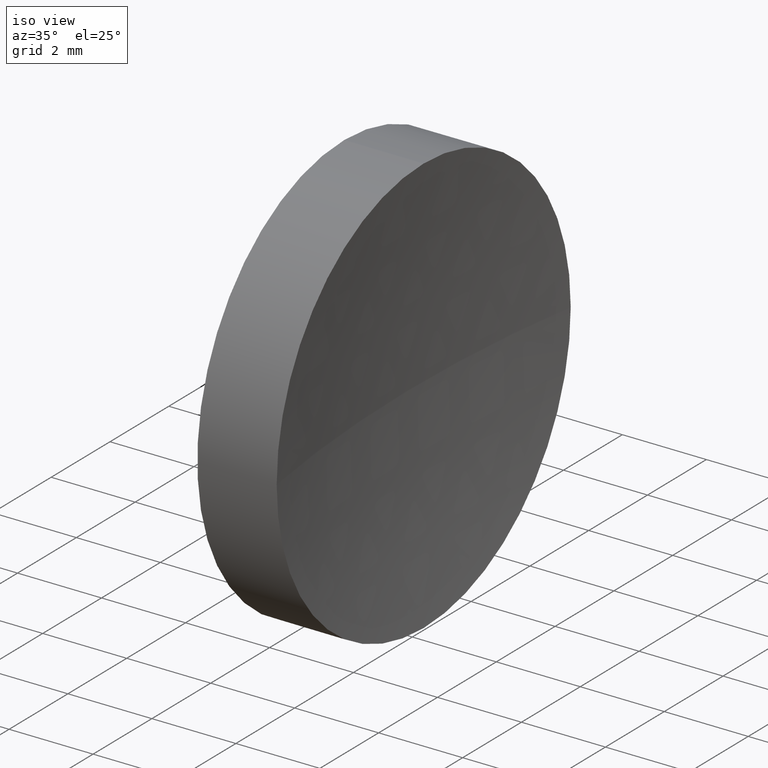
[diagram: clean part render]
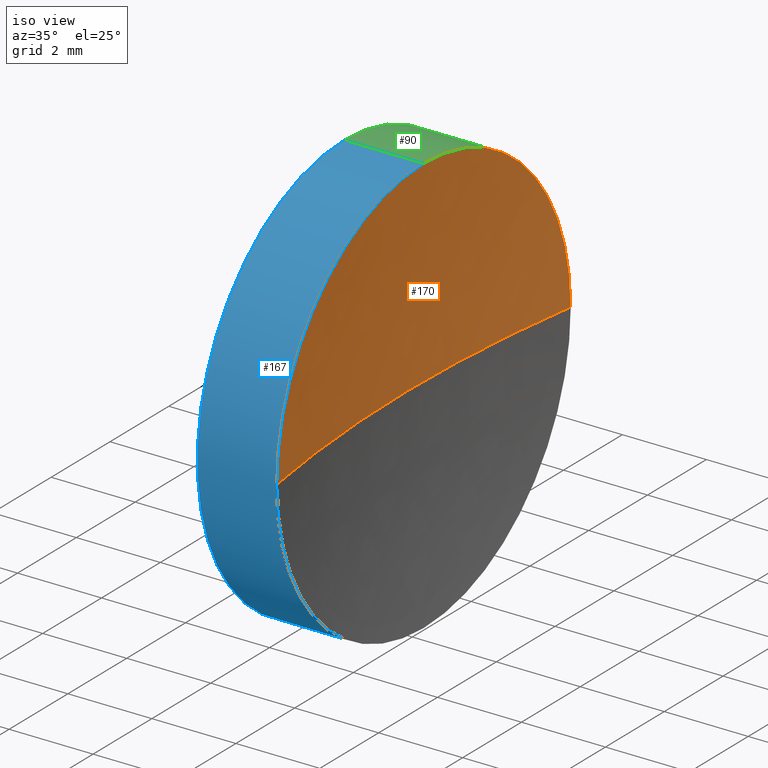
[diagram: same view with three faces highlighted in distinct colors, each labeled with its STEP entity id]
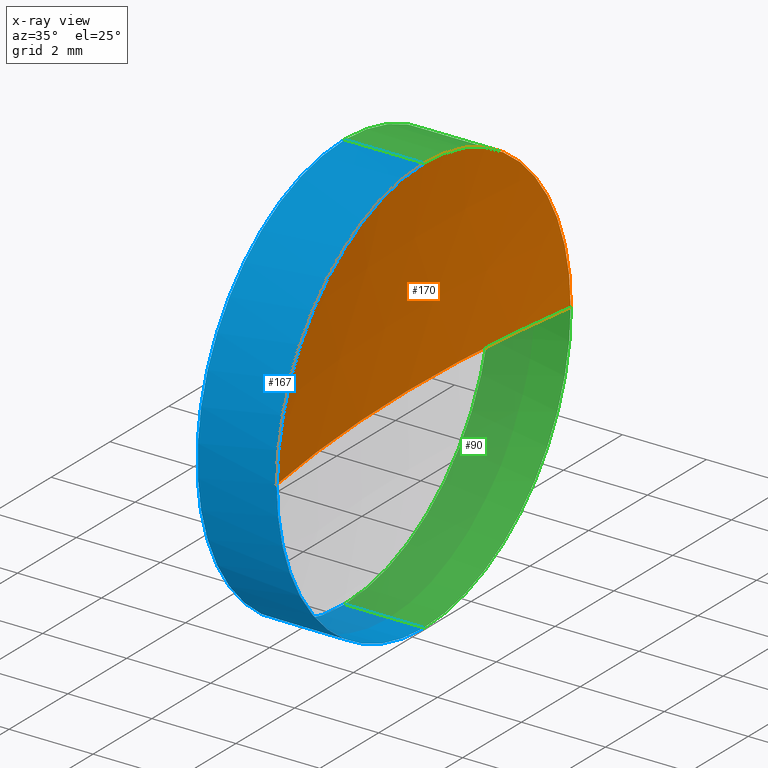
[diagram: x-ray of the same camera — body ghosted, the three highlighted faces saturated]
A machine part, iso view with three faces highlighted in distinct colors.
The next image is the same camera in x-ray (body ghosted, the three faces saturated) — at least one of them is partly hidden behind the body in this view.
Their STEP definitions:

[orange] entity #170 — the highlighted spherical surface has radius 32.2463 mm.
#1 = ORIENTED_EDGE ( 'NONE', *, *, #173, .T. ) ;
#3 = DIRECTION ( 'NONE',  ( 0.0000000000000000000, 0.0000000000000000000, 1.000000000000000000 ) ) ;
#8 = VERTEX_POINT ( 'NONE', #16 ) ;
#12 = FACE_OUTER_BOUND ( 'NONE', #31, .T. ) ;
#14 = DIRECTION ( 'NONE',  ( -1.000000000000000000, -0.0000000000000000000, -0.0000000000000000000 ) ) ;
#16 = CARTESIAN_POINT ( 'NONE',  ( 45.81958546217385500, 26.08904114919495500, 0.0000000000000000000 ) ) ;
#21 = DIRECTION ( 'NONE',  ( 0.0000000000000000000, -1.000000000000000000, 0.0000000000000000000 ) ) ;
#24 = AXIS2_PLACEMENT_3D ( 'NONE', #65, #137, #46 ) ;
#26 = AXIS2_PLACEMENT_3D ( 'NONE', #79, #3, #21 ) ;
#27 = CARTESIAN_POINT ( 'NONE',  ( 46.20958549791029700, 26.08904114919495900, 0.0000000000000000000 ) ) ;
#31 = EDGE_LOOP ( 'NONE', ( #149, #166, #178, #1 ) ) ;
#34 = CARTESIAN_POINT ( 'NONE',  ( 46.20958549791029700, 31.08904114919497300, 6.123233995736783000E-016 ) ) ;
#41 = AXIS2_PLACEMENT_3D ( 'NONE', #27, #14, #130 ) ;
#46 = DIRECTION ( 'NONE',  ( 0.0000000000000000000, -1.000000000000000000, -1.224646799147353200E-016 ) ) ;
#52 = EDGE_CURVE ( 'NONE', #112, #183, #181, .T. ) ;
#55 = EDGE_CURVE ( 'NONE', #183, #71, #60, .T. ) ;
#56 = DIRECTION ( 'NONE',  ( -1.000000000000000000, -0.0000000000000000000, -0.0000000000000000000 ) ) ;
#60 = CIRCLE ( 'NONE', #70, 5.000000000000000900 ) ;
#65 = CARTESIAN_POINT ( 'NONE',  ( 78.06586459440524100, 26.08904114919495900, 0.0000000000000000000 ) ) ;
#70 = AXIS2_PLACEMENT_3D ( 'NONE', #143, #56, #113 ) ;
#71 = VERTEX_POINT ( 'NONE', #34 ) ;
#74 = CIRCLE ( 'NONE', #24, 32.24627913223138600 ) ;
#79 = CARTESIAN_POINT ( 'NONE',  ( 78.06586459440524100, 26.08904114919495900, 0.0000000000000000000 ) ) ;
#80 = CARTESIAN_POINT ( 'NONE',  ( 78.06586459440524100, 26.08904114919495900, 0.0000000000000000000 ) ) ;
#85 = SPHERICAL_SURFACE ( 'NONE', #26, 32.24627913223138600 ) ;
#102 = AXIS2_PLACEMENT_3D ( 'NONE', #80, #176, #105 ) ;
#103 = EDGE_CURVE ( 'NONE', #71, #8, #74, .T. ) ;
#105 = DIRECTION ( 'NONE',  ( -1.000000000000000000, 0.0000000000000000000, 0.0000000000000000000 ) ) ;
#110 = CIRCLE ( 'NONE', #102, 32.24627913223138600 ) ;
#112 = VERTEX_POINT ( 'NONE', #162 ) ;
#113 = DIRECTION ( 'NONE',  ( 0.0000000000000000000, 0.0000000000000000000, 1.000000000000000000 ) ) ;
#130 = DIRECTION ( 'NONE',  ( 0.0000000000000000000, 0.0000000000000000000, 1.000000000000000000 ) ) ;
#137 = DIRECTION ( 'NONE',  ( 0.0000000000000000000, -1.224646799147353200E-016, 1.000000000000000000 ) ) ;
#143 = CARTESIAN_POINT ( 'NONE',  ( 46.20958549791029700, 26.08904114919495900, 0.0000000000000000000 ) ) ;
#149 = ORIENTED_EDGE ( 'NONE', *, *, #103, .F. ) ;
#160 = CARTESIAN_POINT ( 'NONE',  ( 46.20958549791029700, 26.08904114919495900, 5.000000000000000900 ) ) ;
#162 = CARTESIAN_POINT ( 'NONE',  ( 46.20958549791029700, 21.08904114919494400, 0.0000000000000000000 ) ) ;
#166 = ORIENTED_EDGE ( 'NONE', *, *, #55, .F. ) ;
#170 = ADVANCED_FACE ( 'NONE', ( #12 ), #85, .F. ) ;
#173 = EDGE_CURVE ( 'NONE', #112, #8, #110, .T. ) ;
#176 = DIRECTION ( 'NONE',  ( 0.0000000000000000000, 0.0000000000000000000, -1.000000000000000000 ) ) ;
#178 = ORIENTED_EDGE ( 'NONE', *, *, #52, .F. ) ;
#181 = CIRCLE ( 'NONE', #41, 5.000000000000000900 ) ;
#183 = VERTEX_POINT ( 'NONE', #160 ) ;

[blue] entity #167 — the highlighted cylindrical surface (partial cylindrical patch) has radius 5 mm, axis along (-1, -0, -0).
#4 = DIRECTION ( 'NONE',  ( 0.0000000000000000000, 0.0000000000000000000, 1.000000000000000000 ) ) ;
#14 = DIRECTION ( 'NONE',  ( -1.000000000000000000, -0.0000000000000000000, -0.0000000000000000000 ) ) ;
#15 = EDGE_CURVE ( 'NONE', #29, #121, #186, .T. ) ;
#20 = DIRECTION ( 'NONE',  ( -1.000000000000000000, -0.0000000000000000000, -0.0000000000000000000 ) ) ;
#22 = CARTESIAN_POINT ( 'NONE',  ( 42.44986111413682300, 26.08904114919495900, 0.0000000000000000000 ) ) ;
#27 = CARTESIAN_POINT ( 'NONE',  ( 46.20958549791029700, 26.08904114919495900, 0.0000000000000000000 ) ) ;
#28 = CARTESIAN_POINT ( 'NONE',  ( 42.44986111413682300, 26.08904114919495900, -5.000000000000000900 ) ) ;
#29 = VERTEX_POINT ( 'NONE', #131 ) ;
#32 = AXIS2_PLACEMENT_3D ( 'NONE', #124, #38, #92 ) ;
#33 = ORIENTED_EDGE ( 'NONE', *, *, #15, .F. ) ;
#37 = EDGE_LOOP ( 'NONE', ( #33, #164, #156, #66, #134 ) ) ;
#38 = DIRECTION ( 'NONE',  ( -1.000000000000000000, -0.0000000000000000000, -0.0000000000000000000 ) ) ;
#41 = AXIS2_PLACEMENT_3D ( 'NONE', #27, #14, #130 ) ;
#47 = EDGE_CURVE ( 'NONE', #183, #59, #99, .T. ) ;
#50 = VECTOR ( 'NONE', #185, 1000.000000000000000 ) ;
#51 = CARTESIAN_POINT ( 'NONE',  ( 44.31958549791029600, 26.08904114919495900, -5.000000000000000900 ) ) ;
#52 = EDGE_CURVE ( 'NONE', #112, #183, #181, .T. ) ;
#54 = CARTESIAN_POINT ( 'NONE',  ( 42.44986111413682300, 26.08904114919495900, 5.000000000000000900 ) ) ;
#57 = EDGE_CURVE ( 'NONE', #29, #112, #68, .T. ) ;
#59 = VERTEX_POINT ( 'NONE', #150 ) ;
#66 = ORIENTED_EDGE ( 'NONE', *, *, #47, .T. ) ;
#68 = CIRCLE ( 'NONE', #136, 5.000000000000000900 ) ;
#69 = AXIS2_PLACEMENT_3D ( 'NONE', #22, #20, #104 ) ;
#75 = FACE_OUTER_BOUND ( 'NONE', #37, .T. ) ;
#81 = DIRECTION ( 'NONE',  ( -1.000000000000000000, -0.0000000000000000000, -0.0000000000000000000 ) ) ;
#92 = DIRECTION ( 'NONE',  ( 0.0000000000000000000, 0.0000000000000000000, 1.000000000000000000 ) ) ;
#99 = LINE ( 'NONE', #54, #155 ) ;
#104 = DIRECTION ( 'NONE',  ( 0.0000000000000000000, 0.0000000000000000000, 1.000000000000000000 ) ) ;
#106 = CARTESIAN_POINT ( 'NONE',  ( 46.20958549791029700, 26.08904114919495900, 0.0000000000000000000 ) ) ;
#112 = VERTEX_POINT ( 'NONE', #162 ) ;
#117 = EDGE_CURVE ( 'NONE', #121, #59, #132, .T. ) ;
#118 = CYLINDRICAL_SURFACE ( 'NONE', #69, 5.000000000000000900 ) ;
#121 = VERTEX_POINT ( 'NONE', #51 ) ;
#124 = CARTESIAN_POINT ( 'NONE',  ( 44.31958549791029600, 26.08904114919495900, 0.0000000000000000000 ) ) ;
#129 = DIRECTION ( 'NONE',  ( -1.000000000000000000, -0.0000000000000000000, -0.0000000000000000000 ) ) ;
#130 = DIRECTION ( 'NONE',  ( 0.0000000000000000000, 0.0000000000000000000, 1.000000000000000000 ) ) ;
#131 = CARTESIAN_POINT ( 'NONE',  ( 46.20958549791029700, 26.08904114919495900, -5.000000000000000900 ) ) ;
#132 = CIRCLE ( 'NONE', #32, 5.000000000000000900 ) ;
#134 = ORIENTED_EDGE ( 'NONE', *, *, #117, .F. ) ;
#136 = AXIS2_PLACEMENT_3D ( 'NONE', #106, #81, #4 ) ;
#150 = CARTESIAN_POINT ( 'NONE',  ( 44.31958549791029600, 26.08904114919495900, 5.000000000000000900 ) ) ;
#155 = VECTOR ( 'NONE', #129, 1000.000000000000000 ) ;
#156 = ORIENTED_EDGE ( 'NONE', *, *, #52, .T. ) ;
#160 = CARTESIAN_POINT ( 'NONE',  ( 46.20958549791029700, 26.08904114919495900, 5.000000000000000900 ) ) ;
#162 = CARTESIAN_POINT ( 'NONE',  ( 46.20958549791029700, 21.08904114919494400, 0.0000000000000000000 ) ) ;
#164 = ORIENTED_EDGE ( 'NONE', *, *, #57, .T. ) ;
#167 = ADVANCED_FACE ( 'NONE', ( #75 ), #118, .T. ) ;
#181 = CIRCLE ( 'NONE', #41, 5.000000000000000900 ) ;
#183 = VERTEX_POINT ( 'NONE', #160 ) ;
#185 = DIRECTION ( 'NONE',  ( -1.000000000000000000, -0.0000000000000000000, -0.0000000000000000000 ) ) ;
#186 = LINE ( 'NONE', #28, #50 ) ;

[green] entity #90 — the highlighted cylindrical surface (partial cylindrical patch) has radius 5 mm, axis along (-1, -0, -0).
#9 = ORIENTED_EDGE ( 'NONE', *, *, #55, .T. ) ;
#15 = EDGE_CURVE ( 'NONE', #29, #121, #186, .T. ) ;
#18 = FACE_OUTER_BOUND ( 'NONE', #77, .T. ) ;
#28 = CARTESIAN_POINT ( 'NONE',  ( 42.44986111413682300, 26.08904114919495900, -5.000000000000000900 ) ) ;
#29 = VERTEX_POINT ( 'NONE', #131 ) ;
#34 = CARTESIAN_POINT ( 'NONE',  ( 46.20958549791029700, 31.08904114919497300, 6.123233995736783000E-016 ) ) ;
#40 = DIRECTION ( 'NONE',  ( -1.000000000000000000, -0.0000000000000000000, -0.0000000000000000000 ) ) ;
#47 = EDGE_CURVE ( 'NONE', #183, #59, #99, .T. ) ;
#48 = DIRECTION ( 'NONE',  ( -1.000000000000000000, -0.0000000000000000000, -0.0000000000000000000 ) ) ;
#50 = VECTOR ( 'NONE', #185, 1000.000000000000000 ) ;
#51 = CARTESIAN_POINT ( 'NONE',  ( 44.31958549791029600, 26.08904114919495900, -5.000000000000000900 ) ) ;
#53 = DIRECTION ( 'NONE',  ( 0.0000000000000000000, 0.0000000000000000000, 1.000000000000000000 ) ) ;
#54 = CARTESIAN_POINT ( 'NONE',  ( 42.44986111413682300, 26.08904114919495900, 5.000000000000000900 ) ) ;
#55 = EDGE_CURVE ( 'NONE', #183, #71, #60, .T. ) ;
#56 = DIRECTION ( 'NONE',  ( -1.000000000000000000, -0.0000000000000000000, -0.0000000000000000000 ) ) ;
#59 = VERTEX_POINT ( 'NONE', #150 ) ;
#60 = CIRCLE ( 'NONE', #70, 5.000000000000000900 ) ;
#62 = CARTESIAN_POINT ( 'NONE',  ( 44.31958549791029600, 26.08904114919495900, 0.0000000000000000000 ) ) ;
#64 = DIRECTION ( 'NONE',  ( 0.0000000000000000000, 0.0000000000000000000, 1.000000000000000000 ) ) ;
#70 = AXIS2_PLACEMENT_3D ( 'NONE', #143, #56, #113 ) ;
#71 = VERTEX_POINT ( 'NONE', #34 ) ;
#72 = ORIENTED_EDGE ( 'NONE', *, *, #15, .T. ) ;
#76 = CYLINDRICAL_SURFACE ( 'NONE', #123, 5.000000000000000900 ) ;
#77 = EDGE_LOOP ( 'NONE', ( #172, #72, #145, #107, #9 ) ) ;
#89 = AXIS2_PLACEMENT_3D ( 'NONE', #62, #40, #53 ) ;
#90 = ADVANCED_FACE ( 'NONE', ( #18 ), #76, .T. ) ;
#91 = CIRCLE ( 'NONE', #128, 5.000000000000000900 ) ;
#93 = CARTESIAN_POINT ( 'NONE',  ( 46.20958549791029700, 26.08904114919495900, 0.0000000000000000000 ) ) ;
#99 = LINE ( 'NONE', #54, #155 ) ;
#107 = ORIENTED_EDGE ( 'NONE', *, *, #47, .F. ) ;
#111 = EDGE_CURVE ( 'NONE', #71, #29, #91, .T. ) ;
#113 = DIRECTION ( 'NONE',  ( 0.0000000000000000000, 0.0000000000000000000, 1.000000000000000000 ) ) ;
#121 = VERTEX_POINT ( 'NONE', #51 ) ;
#123 = AXIS2_PLACEMENT_3D ( 'NONE', #148, #48, #64 ) ;
#128 = AXIS2_PLACEMENT_3D ( 'NONE', #93, #175, #161 ) ;
#129 = DIRECTION ( 'NONE',  ( -1.000000000000000000, -0.0000000000000000000, -0.0000000000000000000 ) ) ;
#131 = CARTESIAN_POINT ( 'NONE',  ( 46.20958549791029700, 26.08904114919495900, -5.000000000000000900 ) ) ;
#143 = CARTESIAN_POINT ( 'NONE',  ( 46.20958549791029700, 26.08904114919495900, 0.0000000000000000000 ) ) ;
#145 = ORIENTED_EDGE ( 'NONE', *, *, #177, .F. ) ;
#148 = CARTESIAN_POINT ( 'NONE',  ( 42.44986111413682300, 26.08904114919495900, 0.0000000000000000000 ) ) ;
#150 = CARTESIAN_POINT ( 'NONE',  ( 44.31958549791029600, 26.08904114919495900, 5.000000000000000900 ) ) ;
#155 = VECTOR ( 'NONE', #129, 1000.000000000000000 ) ;
#157 = CIRCLE ( 'NONE', #89, 5.000000000000000900 ) ;
#160 = CARTESIAN_POINT ( 'NONE',  ( 46.20958549791029700, 26.08904114919495900, 5.000000000000000900 ) ) ;
#161 = DIRECTION ( 'NONE',  ( 0.0000000000000000000, 0.0000000000000000000, 1.000000000000000000 ) ) ;
#172 = ORIENTED_EDGE ( 'NONE', *, *, #111, .T. ) ;
#175 = DIRECTION ( 'NONE',  ( -1.000000000000000000, -0.0000000000000000000, -0.0000000000000000000 ) ) ;
#177 = EDGE_CURVE ( 'NONE', #59, #121, #157, .T. ) ;
#183 = VERTEX_POINT ( 'NONE', #160 ) ;
#185 = DIRECTION ( 'NONE',  ( -1.000000000000000000, -0.0000000000000000000, -0.0000000000000000000 ) ) ;
#186 = LINE ( 'NONE', #28, #50 ) ;